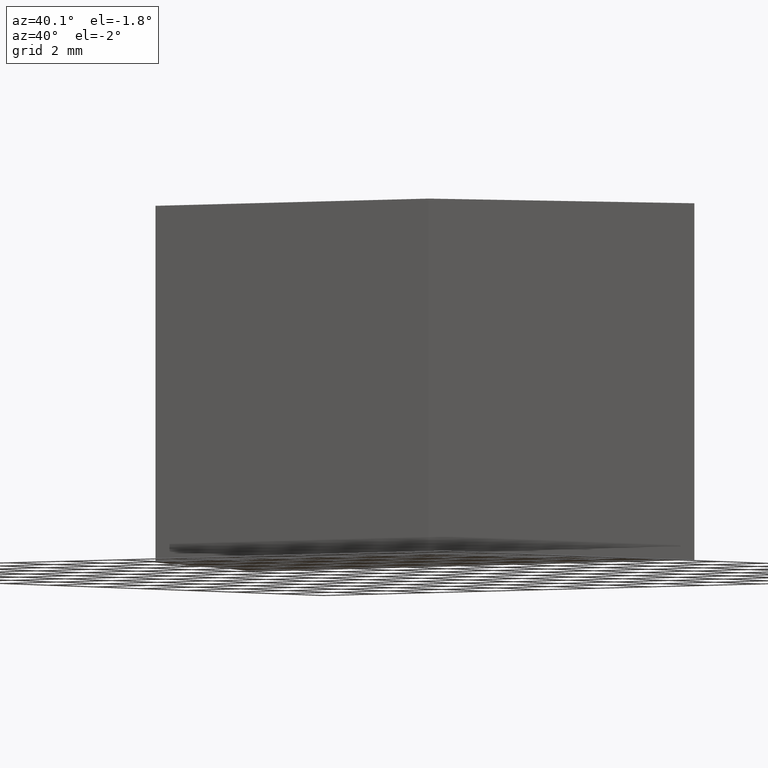
[diagram: clean part render]
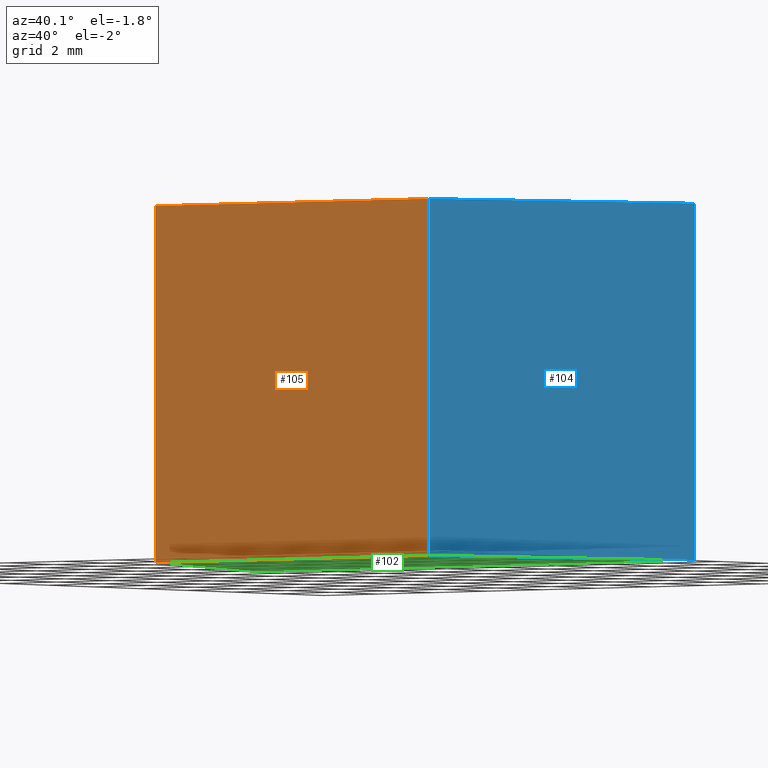
[diagram: same view with three faces highlighted in distinct colors, each labeled with its STEP entity id]
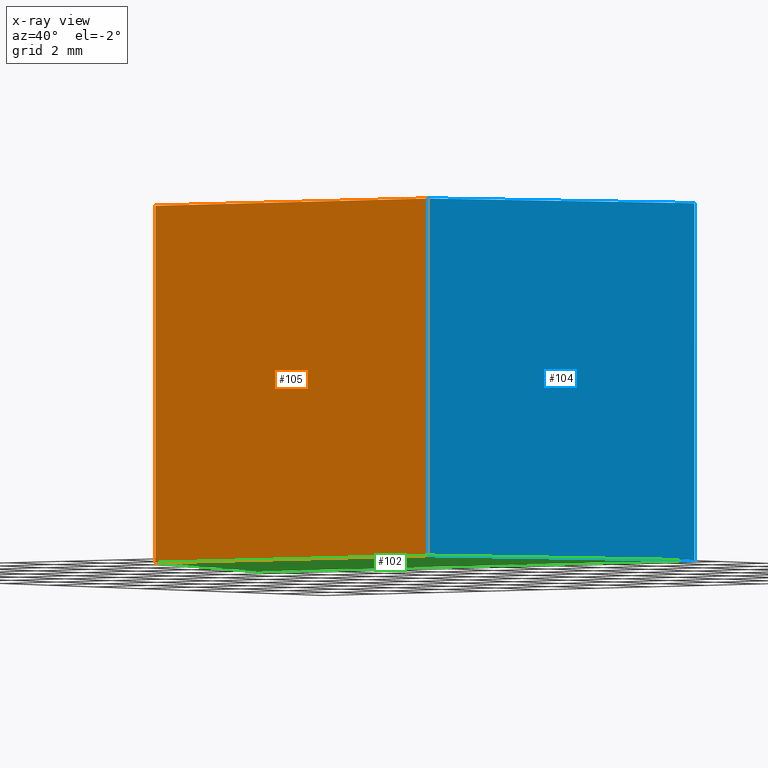
[diagram: x-ray of the same camera — body ghosted, the three highlighted faces saturated]
A machine part, auxiliary view with three faces highlighted in distinct colors.
The next image is the same camera in x-ray (body ghosted, the three faces saturated) — at least one of them is partly hidden behind the body in this view.
Their STEP definitions:

[orange] entity #105 — the highlighted planar face has unit normal (0, -1, 0).
#19=FACE_OUTER_BOUND('',#25,.T.);
#25=EDGE_LOOP('',(#84,#85,#86,#87));
#28=LINE('',#167,#40);
#36=LINE('',#182,#48);
#37=LINE('',#185,#49);
#38=LINE('',#186,#50);
#40=VECTOR('',#141,10.);
#48=VECTOR('',#153,10.);
#49=VECTOR('',#156,10.);
#50=VECTOR('',#157,10.);
#52=VERTEX_POINT('',#165);
#53=VERTEX_POINT('',#166);
#58=VERTEX_POINT('',#180);
#59=VERTEX_POINT('',#184);
#60=EDGE_CURVE('',#52,#53,#28,.T.);
#68=EDGE_CURVE('',#53,#58,#36,.T.);
#69=EDGE_CURVE('',#58,#59,#37,.T.);
#70=EDGE_CURVE('',#52,#59,#38,.T.);
#84=ORIENTED_EDGE('',*,*,#69,.T.);
#85=ORIENTED_EDGE('',*,*,#70,.F.);
#86=ORIENTED_EDGE('',*,*,#60,.T.);
#87=ORIENTED_EDGE('',*,*,#68,.T.);
#99=PLANE('',#134);
#105=ADVANCED_FACE('',(#19),#99,.T.);
#134=AXIS2_PLACEMENT_3D('',#183,#154,#155);
#141=DIRECTION('',(1.,8.25582057116383E-17,0.));
#153=DIRECTION('',(0.,0.,1.));
#154=DIRECTION('center_axis',(8.25582057116383E-17,-1.,0.));
#155=DIRECTION('ref_axis',(0.,0.,-1.));
#156=DIRECTION('',(-1.,-8.25582057116383E-17,0.));
#157=DIRECTION('',(0.,0.,1.));
#165=CARTESIAN_POINT('',(-5.,-8.25582057116383E-16,-5.));
#166=CARTESIAN_POINT('',(5.,0.,-5.));
#167=CARTESIAN_POINT('',(-5.,-8.25582057116383E-16,-5.));
#180=CARTESIAN_POINT('',(5.,0.,5.));
#182=CARTESIAN_POINT('',(5.,0.,0.));
#183=CARTESIAN_POINT('Origin',(5.,0.,0.));
#184=CARTESIAN_POINT('',(-5.,-8.25582057116383E-16,5.));
#185=CARTESIAN_POINT('',(-5.,-8.25582057116383E-16,5.));
#186=CARTESIAN_POINT('',(-5.,-8.25582057116383E-16,0.));

[blue] entity #104 — the highlighted planar face has unit normal (0.9363, -0.3511, 0).
#18=FACE_OUTER_BOUND('',#24,.T.);
#24=EDGE_LOOP('',(#80,#81,#82,#83));
#31=LINE('',#172,#43);
#33=LINE('',#177,#45);
#35=LINE('',#181,#47);
#36=LINE('',#182,#48);
#43=VECTOR('',#144,10.);
#45=VECTOR('',#148,10.);
#47=VECTOR('',#152,10.);
#48=VECTOR('',#153,10.);
#53=VERTEX_POINT('',#166);
#55=VERTEX_POINT('',#170);
#57=VERTEX_POINT('',#175);
#58=VERTEX_POINT('',#180);
#63=EDGE_CURVE('',#53,#55,#31,.T.);
#65=EDGE_CURVE('',#55,#57,#33,.T.);
#67=EDGE_CURVE('',#57,#58,#35,.T.);
#68=EDGE_CURVE('',#53,#58,#36,.T.);
#80=ORIENTED_EDGE('',*,*,#67,.T.);
#81=ORIENTED_EDGE('',*,*,#68,.F.);
#82=ORIENTED_EDGE('',*,*,#63,.T.);
#83=ORIENTED_EDGE('',*,*,#65,.T.);
#98=PLANE('',#133);
#104=ADVANCED_FACE('',(#18),#98,.T.);
#133=AXIS2_PLACEMENT_3D('',#179,#150,#151);
#144=DIRECTION('',(0.351123441588392,0.936329177569045,0.));
#148=DIRECTION('',(0.,0.,1.));
#150=DIRECTION('center_axis',(0.936329177569045,-0.351123441588392,0.));
#151=DIRECTION('ref_axis',(0.,0.,-1.));
#152=DIRECTION('',(-0.351123441588392,-0.936329177569045,0.));
#153=DIRECTION('',(0.,0.,1.));
#166=CARTESIAN_POINT('',(5.,0.,-5.));
#170=CARTESIAN_POINT('',(8.,8.,-5.));
#172=CARTESIAN_POINT('',(5.,0.,-5.));
#175=CARTESIAN_POINT('',(8.,8.,5.));
#177=CARTESIAN_POINT('',(8.,8.,0.));
#179=CARTESIAN_POINT('Origin',(8.,8.,0.));
#180=CARTESIAN_POINT('',(5.,0.,5.));
#181=CARTESIAN_POINT('',(5.,0.,5.));
#182=CARTESIAN_POINT('',(5.,0.,0.));

[green] entity #102 — the highlighted planar face has unit normal (0, 0, 1).
#16=FACE_OUTER_BOUND('',#22,.T.);
#22=EDGE_LOOP('',(#72,#73,#74,#75));
#28=LINE('',#167,#40);
#29=LINE('',#169,#41);
#30=LINE('',#171,#42);
#31=LINE('',#172,#43);
#40=VECTOR('',#141,10.);
#41=VECTOR('',#142,10.);
#42=VECTOR('',#143,10.);
#43=VECTOR('',#144,10.);
#52=VERTEX_POINT('',#165);
#53=VERTEX_POINT('',#166);
#54=VERTEX_POINT('',#168);
#55=VERTEX_POINT('',#170);
#60=EDGE_CURVE('',#52,#53,#28,.T.);
#61=EDGE_CURVE('',#54,#52,#29,.T.);
#62=EDGE_CURVE('',#55,#54,#30,.T.);
#63=EDGE_CURVE('',#53,#55,#31,.T.);
#72=ORIENTED_EDGE('',*,*,#60,.F.);
#73=ORIENTED_EDGE('',*,*,#61,.F.);
#74=ORIENTED_EDGE('',*,*,#62,.F.);
#75=ORIENTED_EDGE('',*,*,#63,.F.);
#96=PLANE('',#131);
#102=ADVANCED_FACE('',(#16),#96,.F.);
#131=AXIS2_PLACEMENT_3D('',#164,#139,#140);
#139=DIRECTION('center_axis',(0.,0.,1.));
#140=DIRECTION('ref_axis',(1.,0.,0.));
#141=DIRECTION('',(1.,8.25582057116383E-17,0.));
#142=DIRECTION('',(0.351123441588392,-0.936329177569045,0.));
#143=DIRECTION('',(-1.,0.,0.));
#144=DIRECTION('',(0.351123441588392,0.936329177569045,0.));
#164=CARTESIAN_POINT('Origin',(-4.84839500386556E-16,4.55699953183531,-5.));
#165=CARTESIAN_POINT('',(-5.,-8.25582057116383E-16,-5.));
#166=CARTESIAN_POINT('',(5.,0.,-5.));
#167=CARTESIAN_POINT('',(-5.,-8.25582057116383E-16,-5.));
#168=CARTESIAN_POINT('',(-8.,8.,-5.));
#169=CARTESIAN_POINT('',(-8.,8.,-5.));
#170=CARTESIAN_POINT('',(8.,8.,-5.));
#171=CARTESIAN_POINT('',(8.,8.,-5.));
#172=CARTESIAN_POINT('',(5.,0.,-5.));